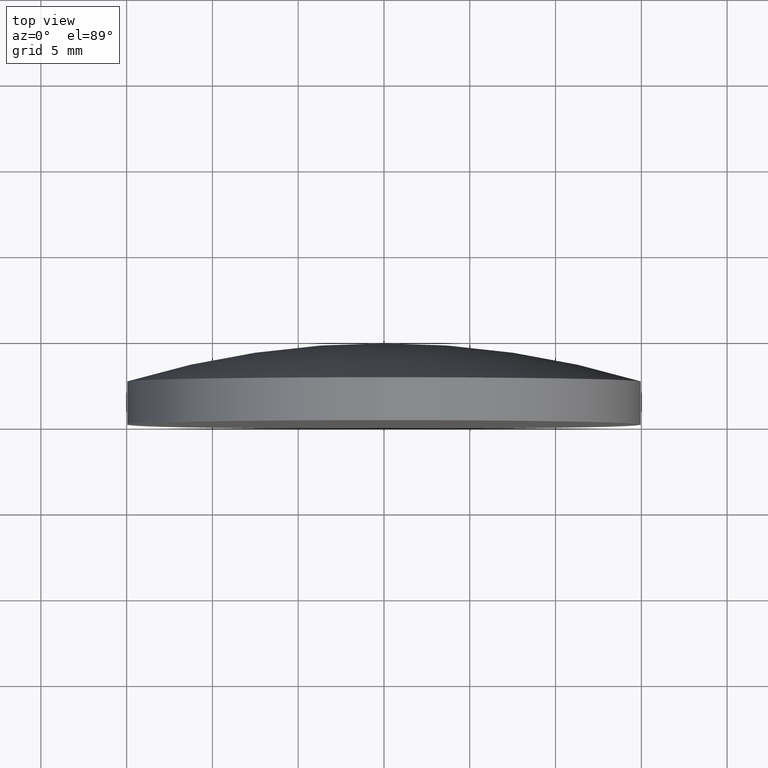
[diagram: clean part render]
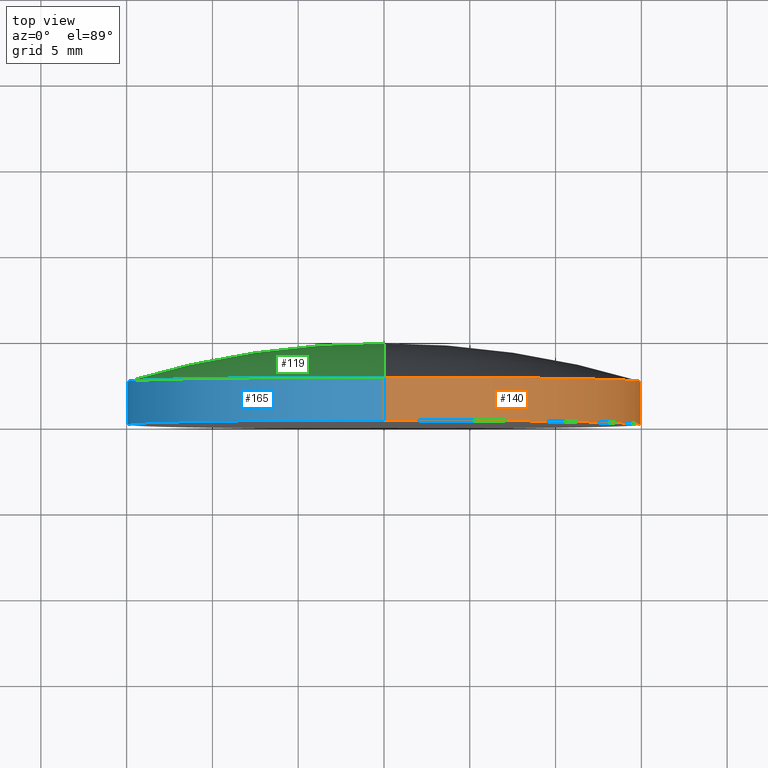
[diagram: same view with three faces highlighted in distinct colors, each labeled with its STEP entity id]
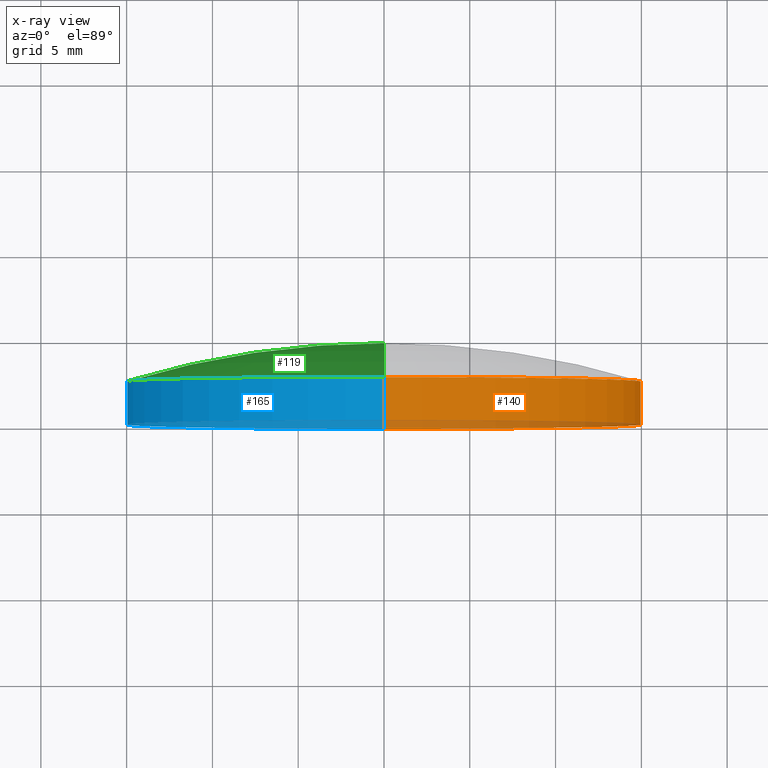
[diagram: x-ray of the same camera — body ghosted, the three highlighted faces saturated]
A machine part, top view with three faces highlighted in distinct colors.
The next image is the same camera in x-ray (body ghosted, the three faces saturated) — at least one of them is partly hidden behind the body in this view.
Their STEP definitions:

[orange] entity #140 — the highlighted cylindrical surface (partial cylindrical patch) has radius 15 mm, axis along (-0, 1, -0).
#7 = EDGE_CURVE ( 'NONE', #141, #186, #172, .T. ) ;
#12 = EDGE_LOOP ( 'NONE', ( #97, #157, #52, #175 ) ) ;
#16 = CARTESIAN_POINT ( 'NONE',  ( 0.000000000000000000, 2.500000000000000444, 15.00000000000000178 ) ) ;
#18 = VERTEX_POINT ( 'NONE', #21 ) ;
#21 = CARTESIAN_POINT ( 'NONE',  ( 0.000000000000000000, -1.734723475976807094E-15, 15.00000000000000000 ) ) ;
#29 = DIRECTION ( 'NONE',  ( -0.000000000000000000, 1.000000000000000000, -0.000000000000000000 ) ) ;
#38 = CARTESIAN_POINT ( 'NONE',  ( 1.836970198721029589E-15, 2.500000000000000444, -15.00000000000000178 ) ) ;
#39 = FACE_OUTER_BOUND ( 'NONE', #12, .T. ) ;
#40 = DIRECTION ( 'NONE',  ( -0.000000000000000000, 1.000000000000000000, -0.000000000000000000 ) ) ;
#49 = EDGE_CURVE ( 'NONE', #18, #81, #112, .T. ) ;
#52 = ORIENTED_EDGE ( 'NONE', *, *, #183, .F. ) ;
#55 = CARTESIAN_POINT ( 'NONE',  ( 0.000000000000000000, 4.730000000000000426, 15.00000000000000000 ) ) ;
#63 = EDGE_CURVE ( 'NONE', #18, #141, #149, .T. ) ;
#74 = DIRECTION ( 'NONE',  ( 0.000000000000000000, 0.000000000000000000, 1.000000000000000000 ) ) ;
#80 = VECTOR ( 'NONE', #127, 1000.000000000000000 ) ;
#81 = VERTEX_POINT ( 'NONE', #16 ) ;
#83 = CARTESIAN_POINT ( 'NONE',  ( 0.000000000000000000, -1.734723475976807094E-15, 0.000000000000000000 ) ) ;
#86 = CARTESIAN_POINT ( 'NONE',  ( 0.000000000000000000, 4.730000000000000426, 0.000000000000000000 ) ) ;
#90 = CARTESIAN_POINT ( 'NONE',  ( 0.000000000000000000, 2.499999999999998224, 0.000000000000000000 ) ) ;
#93 = DIRECTION ( 'NONE',  ( 0.000000000000000000, 0.000000000000000000, 1.000000000000000000 ) ) ;
#97 = ORIENTED_EDGE ( 'NONE', *, *, #63, .T. ) ;
#98 = AXIS2_PLACEMENT_3D ( 'NONE', #90, #150, #74 ) ;
#99 = CYLINDRICAL_SURFACE ( 'NONE', #115, 15.00000000000000000 ) ;
#100 = DIRECTION ( 'NONE',  ( 0.000000000000000000, 0.000000000000000000, 1.000000000000000000 ) ) ;
#112 = LINE ( 'NONE', #55, #80 ) ;
#115 = AXIS2_PLACEMENT_3D ( 'NONE', #86, #40, #100 ) ;
#127 = DIRECTION ( 'NONE',  ( -0.000000000000000000, 1.000000000000000000, -0.000000000000000000 ) ) ;
#138 = CIRCLE ( 'NONE', #98, 15.00000000000000000 ) ;
#140 = ADVANCED_FACE ( 'NONE', ( #39 ), #99, .T. ) ;
#141 = VERTEX_POINT ( 'NONE', #158 ) ;
#145 = VECTOR ( 'NONE', #198, 1000.000000000000000 ) ;
#149 = CIRCLE ( 'NONE', #190, 15.00000000000000000 ) ;
#150 = DIRECTION ( 'NONE',  ( -0.000000000000000000, 1.000000000000000000, -0.000000000000000000 ) ) ;
#157 = ORIENTED_EDGE ( 'NONE', *, *, #7, .T. ) ;
#158 = CARTESIAN_POINT ( 'NONE',  ( 1.836970198721029589E-15, -1.734723475976807094E-15, -15.00000000000000000 ) ) ;
#169 = CARTESIAN_POINT ( 'NONE',  ( 1.836970198721029589E-15, 4.730000000000000426, -15.00000000000000000 ) ) ;
#172 = LINE ( 'NONE', #169, #145 ) ;
#175 = ORIENTED_EDGE ( 'NONE', *, *, #49, .F. ) ;
#183 = EDGE_CURVE ( 'NONE', #81, #186, #138, .T. ) ;
#186 = VERTEX_POINT ( 'NONE', #38 ) ;
#190 = AXIS2_PLACEMENT_3D ( 'NONE', #83, #29, #93 ) ;
#198 = DIRECTION ( 'NONE',  ( -0.000000000000000000, 1.000000000000000000, -0.000000000000000000 ) ) ;

[blue] entity #165 — the highlighted cylindrical surface (partial cylindrical patch) has radius 15 mm, axis along (-0, 1, -0).
#5 = CARTESIAN_POINT ( 'NONE',  ( 0.000000000000000000, -1.734723475976807094E-15, 0.000000000000000000 ) ) ;
#7 = EDGE_CURVE ( 'NONE', #141, #186, #172, .T. ) ;
#16 = CARTESIAN_POINT ( 'NONE',  ( 0.000000000000000000, 2.500000000000000444, 15.00000000000000178 ) ) ;
#18 = VERTEX_POINT ( 'NONE', #21 ) ;
#21 = CARTESIAN_POINT ( 'NONE',  ( 0.000000000000000000, -1.734723475976807094E-15, 15.00000000000000000 ) ) ;
#24 = CARTESIAN_POINT ( 'NONE',  ( 0.000000000000000000, 4.730000000000000426, 0.000000000000000000 ) ) ;
#26 = EDGE_CURVE ( 'NONE', #186, #81, #110, .T. ) ;
#33 = DIRECTION ( 'NONE',  ( 0.000000000000000000, 0.000000000000000000, 1.000000000000000000 ) ) ;
#38 = CARTESIAN_POINT ( 'NONE',  ( 1.836970198721029589E-15, 2.500000000000000444, -15.00000000000000178 ) ) ;
#49 = EDGE_CURVE ( 'NONE', #18, #81, #112, .T. ) ;
#53 = ORIENTED_EDGE ( 'NONE', *, *, #135, .T. ) ;
#54 = ORIENTED_EDGE ( 'NONE', *, *, #49, .T. ) ;
#55 = CARTESIAN_POINT ( 'NONE',  ( 0.000000000000000000, 4.730000000000000426, 15.00000000000000000 ) ) ;
#61 = AXIS2_PLACEMENT_3D ( 'NONE', #24, #147, #144 ) ;
#68 = ORIENTED_EDGE ( 'NONE', *, *, #7, .F. ) ;
#69 = CARTESIAN_POINT ( 'NONE',  ( 0.000000000000000000, 2.499999999999998224, 0.000000000000000000 ) ) ;
#80 = VECTOR ( 'NONE', #127, 1000.000000000000000 ) ;
#81 = VERTEX_POINT ( 'NONE', #16 ) ;
#84 = DIRECTION ( 'NONE',  ( -0.000000000000000000, 1.000000000000000000, -0.000000000000000000 ) ) ;
#89 = AXIS2_PLACEMENT_3D ( 'NONE', #5, #116, #178 ) ;
#110 = CIRCLE ( 'NONE', #163, 15.00000000000000000 ) ;
#112 = LINE ( 'NONE', #55, #80 ) ;
#116 = DIRECTION ( 'NONE',  ( -0.000000000000000000, 1.000000000000000000, -0.000000000000000000 ) ) ;
#127 = DIRECTION ( 'NONE',  ( -0.000000000000000000, 1.000000000000000000, -0.000000000000000000 ) ) ;
#129 = ORIENTED_EDGE ( 'NONE', *, *, #26, .F. ) ;
#135 = EDGE_CURVE ( 'NONE', #141, #18, #160, .T. ) ;
#141 = VERTEX_POINT ( 'NONE', #158 ) ;
#144 = DIRECTION ( 'NONE',  ( 0.000000000000000000, 0.000000000000000000, 1.000000000000000000 ) ) ;
#145 = VECTOR ( 'NONE', #198, 1000.000000000000000 ) ;
#147 = DIRECTION ( 'NONE',  ( -0.000000000000000000, 1.000000000000000000, -0.000000000000000000 ) ) ;
#158 = CARTESIAN_POINT ( 'NONE',  ( 1.836970198721029589E-15, -1.734723475976807094E-15, -15.00000000000000000 ) ) ;
#160 = CIRCLE ( 'NONE', #89, 15.00000000000000000 ) ;
#161 = FACE_OUTER_BOUND ( 'NONE', #199, .T. ) ;
#162 = CYLINDRICAL_SURFACE ( 'NONE', #61, 15.00000000000000000 ) ;
#163 = AXIS2_PLACEMENT_3D ( 'NONE', #69, #84, #33 ) ;
#165 = ADVANCED_FACE ( 'NONE', ( #161 ), #162, .T. ) ;
#169 = CARTESIAN_POINT ( 'NONE',  ( 1.836970198721029589E-15, 4.730000000000000426, -15.00000000000000000 ) ) ;
#172 = LINE ( 'NONE', #169, #145 ) ;
#178 = DIRECTION ( 'NONE',  ( 0.000000000000000000, 0.000000000000000000, 1.000000000000000000 ) ) ;
#186 = VERTEX_POINT ( 'NONE', #38 ) ;
#198 = DIRECTION ( 'NONE',  ( -0.000000000000000000, 1.000000000000000000, -0.000000000000000000 ) ) ;
#199 = EDGE_LOOP ( 'NONE', ( #68, #53, #54, #129 ) ) ;

[green] entity #119 — the highlighted toroidal blend (fillet) surface has major radius 0.0114 mm and minor (blend) radius 51.64 mm.
#3 = CARTESIAN_POINT ( 'NONE',  ( 0.000000000000000000, -46.90999874539085113, 0.000000000000000000 ) ) ;
#16 = CARTESIAN_POINT ( 'NONE',  ( 0.000000000000000000, 2.500000000000000444, 15.00000000000000178 ) ) ;
#22 = AXIS2_PLACEMENT_3D ( 'NONE', #156, #35, #82 ) ;
#25 = AXIS2_PLACEMENT_3D ( 'NONE', #67, #189, #95 ) ;
#26 = EDGE_CURVE ( 'NONE', #186, #81, #110, .T. ) ;
#33 = DIRECTION ( 'NONE',  ( 0.000000000000000000, 0.000000000000000000, 1.000000000000000000 ) ) ;
#35 = DIRECTION ( 'NONE',  ( 1.000000000000000000, 0.000000000000000000, 1.224646799147353207E-16 ) ) ;
#38 = CARTESIAN_POINT ( 'NONE',  ( 1.836970198721029589E-15, 2.500000000000000444, -15.00000000000000178 ) ) ;
#41 = EDGE_CURVE ( 'NONE', #81, #187, #87, .T. ) ;
#44 = TOROIDAL_SURFACE ( 'NONE', #136, -0.01138314681478104495, 51.64000000000000057 ) ;
#67 = CARTESIAN_POINT ( 'NONE',  ( 0.000000000000000000, -46.90999874539085113, -0.01138314681478104495 ) ) ;
#69 = CARTESIAN_POINT ( 'NONE',  ( 0.000000000000000000, 2.499999999999998224, 0.000000000000000000 ) ) ;
#71 = CARTESIAN_POINT ( 'NONE',  ( 0.000000000000000000, 4.730000000000000426, 0.000000000000000000 ) ) ;
#79 = EDGE_CURVE ( 'NONE', #186, #187, #193, .T. ) ;
#81 = VERTEX_POINT ( 'NONE', #16 ) ;
#82 = DIRECTION ( 'NONE',  ( 1.224646799147353207E-16, 0.000000000000000000, -1.000000000000000000 ) ) ;
#84 = DIRECTION ( 'NONE',  ( -0.000000000000000000, 1.000000000000000000, -0.000000000000000000 ) ) ;
#87 = CIRCLE ( 'NONE', #25, 51.64000000000000057 ) ;
#95 = DIRECTION ( 'NONE',  ( 0.000000000000000000, 0.000000000000000000, 1.000000000000000000 ) ) ;
#96 = EDGE_LOOP ( 'NONE', ( #184, #124, #142 ) ) ;
#110 = CIRCLE ( 'NONE', #163, 15.00000000000000000 ) ;
#117 = DIRECTION ( 'NONE',  ( 0.000000000000000000, 0.000000000000000000, 1.000000000000000000 ) ) ;
#119 = ADVANCED_FACE ( 'NONE', ( #134 ), #44, .T. ) ;
#124 = ORIENTED_EDGE ( 'NONE', *, *, #26, .T. ) ;
#133 = DIRECTION ( 'NONE',  ( -0.000000000000000000, 1.000000000000000000, -0.000000000000000000 ) ) ;
#134 = FACE_OUTER_BOUND ( 'NONE', #96, .T. ) ;
#136 = AXIS2_PLACEMENT_3D ( 'NONE', #3, #133, #117 ) ;
#142 = ORIENTED_EDGE ( 'NONE', *, *, #41, .T. ) ;
#156 = CARTESIAN_POINT ( 'NONE',  ( -1.394033431094599677E-18, -46.90999874539085113, 0.01138314681478104495 ) ) ;
#163 = AXIS2_PLACEMENT_3D ( 'NONE', #69, #84, #33 ) ;
#184 = ORIENTED_EDGE ( 'NONE', *, *, #79, .F. ) ;
#186 = VERTEX_POINT ( 'NONE', #38 ) ;
#187 = VERTEX_POINT ( 'NONE', #71 ) ;
#189 = DIRECTION ( 'NONE',  ( -1.000000000000000000, 0.000000000000000000, 0.000000000000000000 ) ) ;
#193 = CIRCLE ( 'NONE', #22, 51.64000000000000057 ) ;